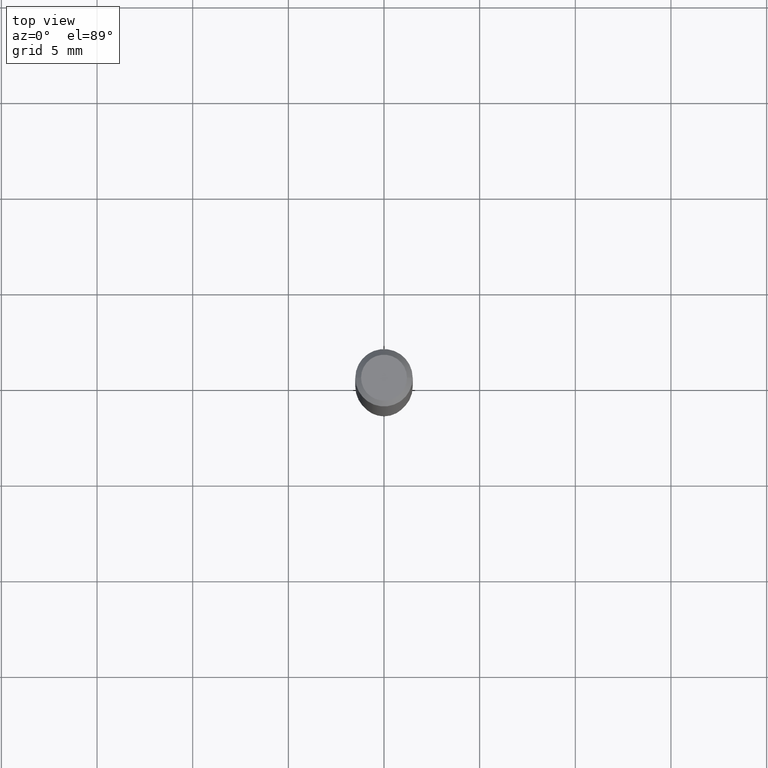
[diagram: clean part render]
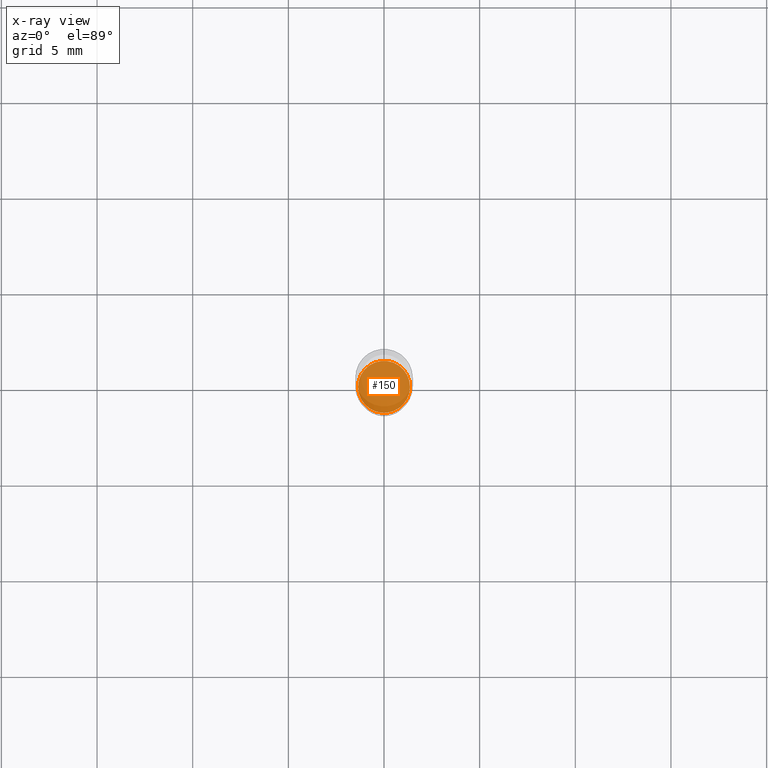
[diagram: x-ray — body ghosted, one internal face saturated and labeled with its STEP entity id]
A machine part, top view, then the same camera in x-ray: the body is ghosted and one INTERNAL B-rep face — a face not visible from any outside direction — is saturated and labeled: STEP entity #150.
In plain terms, the highlighted planar face has unit normal (-0, 0, 1).
Its self-contained STEP definition (entity closure, byte-faithful):
#4 = CARTESIAN_POINT ( 'NONE',  ( 2.676565608369632355E-29, -3.821426325363822773E-15, -1.094500000000000028 ) ) ;
#70 = DIRECTION ( 'NONE',  ( 1.000000000000000000, -6.982962677686263555E-15, 0.000000000000000000 ) ) ;
#97 = CARTESIAN_POINT ( 'NONE',  ( 0.05344999999999999751, -4.194665680486153647E-15, -1.094500000000000028 ) ) ;
#103 = CIRCLE ( 'NONE', #229, 0.05344999999999999751 ) ;
#105 = EDGE_CURVE ( 'NONE', #108, #475, #195, .T. ) ;
#108 = VERTEX_POINT ( 'NONE', #311 ) ;
#119 = ORIENTED_EDGE ( 'NONE', *, *, #430, .F. ) ;
#150 = ADVANCED_FACE ( 'NONE', ( #247 ), #354, .F. ) ;
#154 = DIRECTION ( 'NONE',  ( 1.000000000000000000, -6.982962677686263555E-15, 0.000000000000000000 ) ) ;
#155 = DIRECTION ( 'NONE',  ( -2.445468806185136597E-29, 3.491481338843145583E-15, 1.000000000000000000 ) ) ;
#195 = CIRCLE ( 'NONE', #464, 0.05344999999999999751 ) ;
#216 = EDGE_LOOP ( 'NONE', ( #119, #286 ) ) ;
#224 = CARTESIAN_POINT ( 'NONE',  ( 2.676565608369632355E-29, -3.821426325363822773E-15, -1.094500000000000028 ) ) ;
#229 = AXIS2_PLACEMENT_3D ( 'NONE', #224, #383, #70 ) ;
#247 = FACE_OUTER_BOUND ( 'NONE', #216, .T. ) ;
#286 = ORIENTED_EDGE ( 'NONE', *, *, #105, .F. ) ;
#311 = CARTESIAN_POINT ( 'NONE',  ( -0.05344999999999999751, -3.438992005925938041E-15, -1.094500000000000028 ) ) ;
#313 = DIRECTION ( 'NONE',  ( -2.438088387897960049E-29, 3.491481338843145188E-15, 1.000000000000000000 ) ) ;
#317 = CARTESIAN_POINT ( 'NONE',  ( 7.234213913666534909E-30, -6.618440010177233693E-15, -1.094500000000000028 ) ) ;
#354 = PLANE ( 'NONE',  #488 ) ;
#383 = DIRECTION ( 'NONE',  ( -2.445468806185136597E-29, 3.491481338843145583E-15, 1.000000000000000000 ) ) ;
#394 = DIRECTION ( 'NONE',  ( 1.000000000000000000, -6.982962677686265922E-15, 4.876176775795935793E-29 ) ) ;
#430 = EDGE_CURVE ( 'NONE', #475, #108, #103, .T. ) ;
#464 = AXIS2_PLACEMENT_3D ( 'NONE', #4, #155, #154 ) ;
#475 = VERTEX_POINT ( 'NONE', #97 ) ;
#488 = AXIS2_PLACEMENT_3D ( 'NONE', #317, #313, #394 ) ;